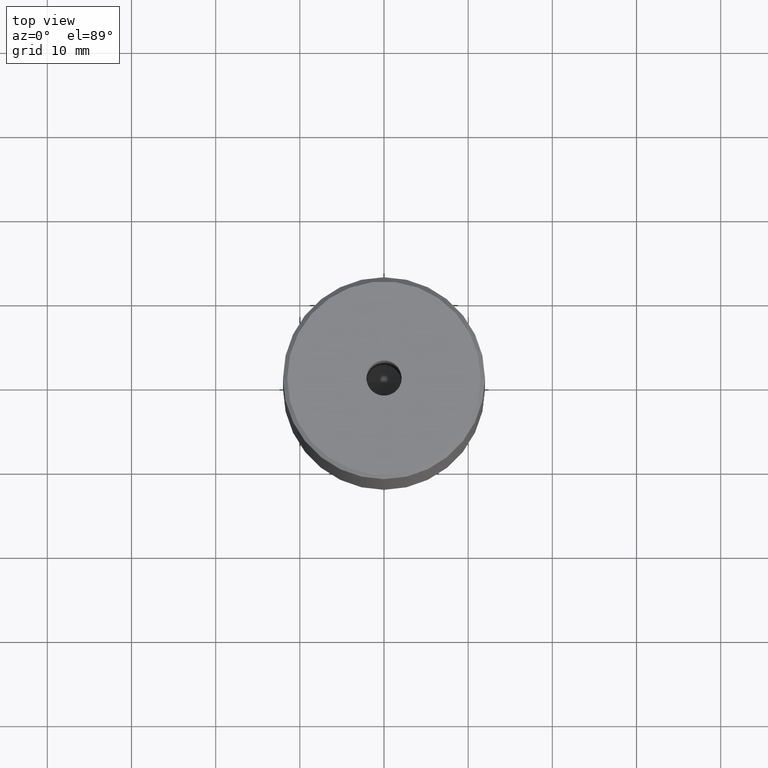
[diagram: clean part render]
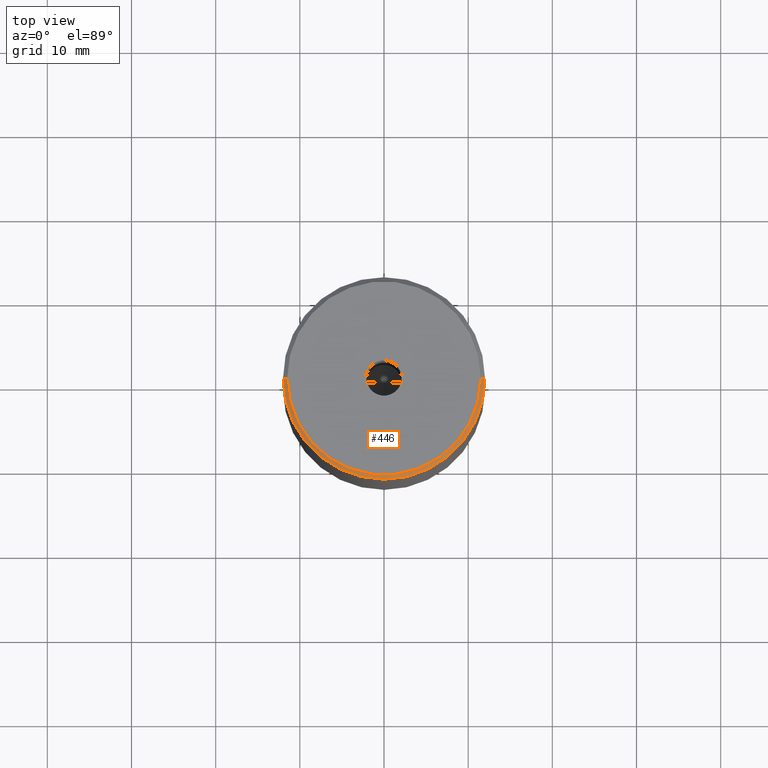
[diagram: same view with one face highlighted and labeled with its STEP entity id]
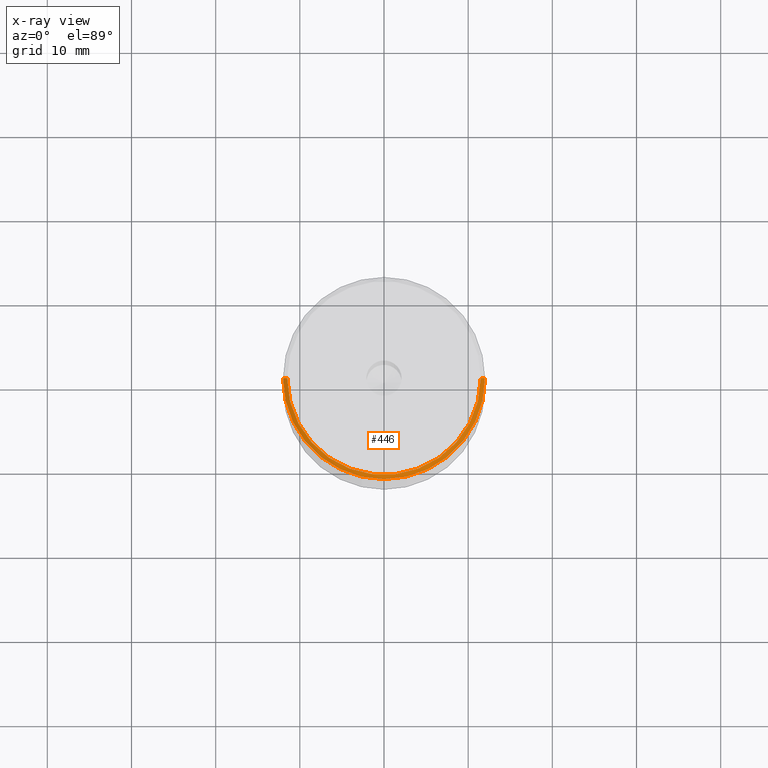
[diagram: x-ray of the same camera — body ghosted, the highlighted face saturated]
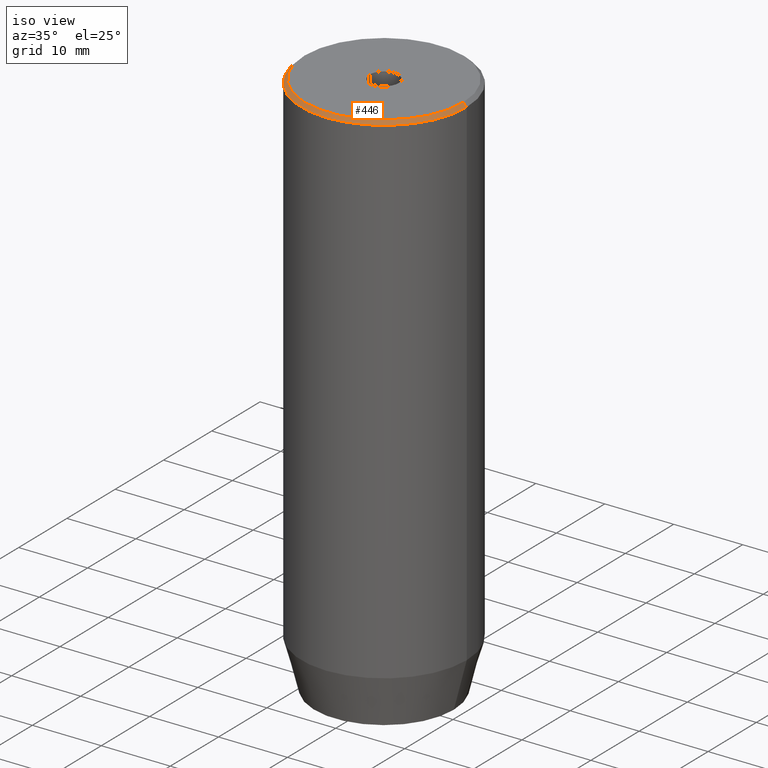
[diagram: same view with one face highlighted and labeled with its STEP entity id]
A machine part, top view. The second image highlights one B-rep face of the part: STEP entity #446.
The next image is the same camera in x-ray: the body ghosted, the highlighted face saturated — about 0% of this face is hidden behind the body in this view.
A second angle (iso view) of the same face is appended — the face is thin or edge-on in the first view.
In plain terms, the highlighted conical surface has half-angle 45 deg.
Its self-contained STEP definition (entity closure, byte-faithful):
#29 = CIRCLE ( 'NONE', #478, 12.00000000000000000 ) ;
#39 = ORIENTED_EDGE ( 'NONE', *, *, #501, .F. ) ;
#46 = CIRCLE ( 'NONE', #357, 11.49999999999999467 ) ;
#51 = CARTESIAN_POINT ( 'NONE',  ( -12.00000000000000000, 1.469576158976823947E-15, -0.5000000000000056621 ) ) ;
#52 = CONICAL_SURFACE ( 'NONE', #314, 11.49999999999999467, 0.7853981633974482790 ) ;
#61 = EDGE_LOOP ( 'NONE', ( #120, #39, #297, #352 ) ) ;
#69 = LINE ( 'NONE', #358, #367 ) ;
#77 = DIRECTION ( 'NONE',  ( -1.000000000000000000, 0.000000000000000000, 0.000000000000000000 ) ) ;
#79 = CARTESIAN_POINT ( 'NONE',  ( 0.000000000000000000, 0.000000000000000000, 0.000000000000000000 ) ) ;
#100 = VECTOR ( 'NONE', #517, 1000.000000000000114 ) ;
#104 = VERTEX_POINT ( 'NONE', #580 ) ;
#120 = ORIENTED_EDGE ( 'NONE', *, *, #140, .F. ) ;
#127 = VERTEX_POINT ( 'NONE', #398 ) ;
#140 = EDGE_CURVE ( 'NONE', #256, #104, #69, .T. ) ;
#169 = DIRECTION ( 'NONE',  ( 0.7071067811865474617, 8.659560562354932858E-17, -0.7071067811865474617 ) ) ;
#183 = DIRECTION ( 'NONE',  ( 1.000000000000000000, 0.000000000000000000, 0.000000000000000000 ) ) ;
#234 = CARTESIAN_POINT ( 'NONE',  ( 11.49999999999999467, 1.438959988998139766E-15, 0.000000000000000000 ) ) ;
#248 = FACE_OUTER_BOUND ( 'NONE', #61, .T. ) ;
#249 = VERTEX_POINT ( 'NONE', #51 ) ;
#256 = VERTEX_POINT ( 'NONE', #234 ) ;
#297 = ORIENTED_EDGE ( 'NONE', *, *, #299, .T. ) ;
#299 = EDGE_CURVE ( 'NONE', #127, #249, #383, .T. ) ;
#303 = DIRECTION ( 'NONE',  ( 1.000000000000000000, 0.000000000000000000, 0.000000000000000000 ) ) ;
#314 = AXIS2_PLACEMENT_3D ( 'NONE', #79, #489, #77 ) ;
#349 = DIRECTION ( 'NONE',  ( 0.000000000000000000, 0.000000000000000000, -1.000000000000000000 ) ) ;
#352 = ORIENTED_EDGE ( 'NONE', *, *, #426, .F. ) ;
#357 = AXIS2_PLACEMENT_3D ( 'NONE', #544, #499, #183 ) ;
#358 = CARTESIAN_POINT ( 'NONE',  ( 11.49999999999999467, 1.408343819019455584E-15, 0.000000000000000000 ) ) ;
#367 = VECTOR ( 'NONE', #169, 1000.000000000000114 ) ;
#383 = LINE ( 'NONE', #561, #100 ) ;
#398 = CARTESIAN_POINT ( 'NONE',  ( -11.49999999999999467, 0.000000000000000000, 0.000000000000000000 ) ) ;
#426 = EDGE_CURVE ( 'NONE', #104, #249, #29, .T. ) ;
#446 = ADVANCED_FACE ( 'NONE', ( #248 ), #52, .T. ) ;
#478 = AXIS2_PLACEMENT_3D ( 'NONE', #486, #349, #303 ) ;
#486 = CARTESIAN_POINT ( 'NONE',  ( 0.000000000000000000, 0.000000000000000000, -0.5000000000000056621 ) ) ;
#489 = DIRECTION ( 'NONE',  ( 0.000000000000000000, 0.000000000000000000, -1.000000000000000000 ) ) ;
#499 = DIRECTION ( 'NONE',  ( -0.000000000000000000, -0.000000000000000000, 1.000000000000000000 ) ) ;
#501 = EDGE_CURVE ( 'NONE', #127, #256, #46, .T. ) ;
#517 = DIRECTION ( 'NONE',  ( -0.7071067811865474617, 0.000000000000000000, -0.7071067811865474617 ) ) ;
#544 = CARTESIAN_POINT ( 'NONE',  ( 0.000000000000000000, 0.000000000000000000, 0.000000000000000000 ) ) ;
#561 = CARTESIAN_POINT ( 'NONE',  ( -11.49999999999999467, 0.000000000000000000, 0.000000000000000000 ) ) ;
#580 = CARTESIAN_POINT ( 'NONE',  ( 12.00000000000000000, 0.000000000000000000, -0.5000000000000056621 ) ) ;